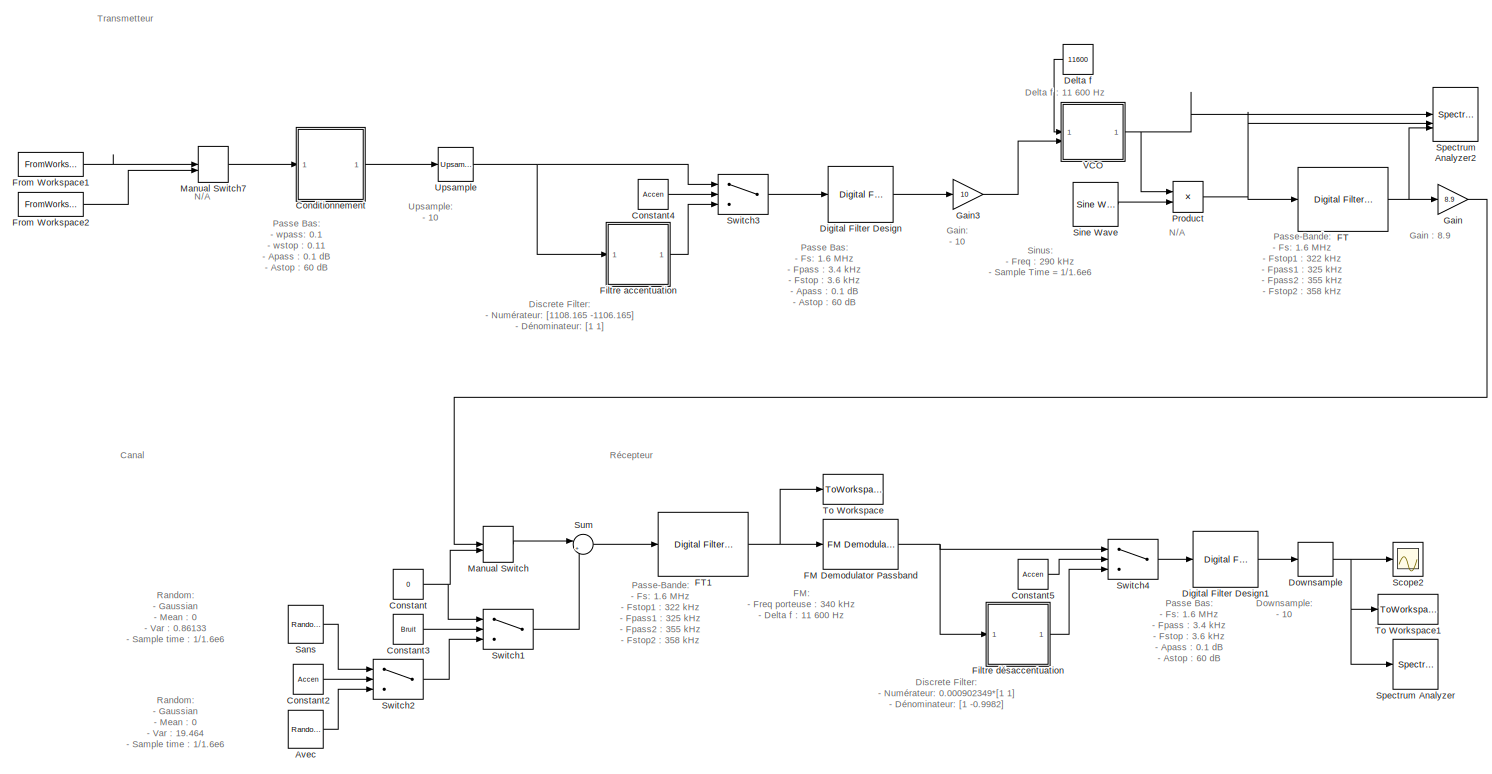
[diagram: root canvas - part 1/1, most of the canvas]
MODEL slx_f2a334653d4a
KIND model
CONFIG AbsTol = auto
CONFIG EnableMultiTasking = off
CONFIG FixedStep = auto
CONFIG MaxStep = auto
CONFIG MinStep = auto
CONFIG RelTol = 1e-3
CONFIG SampleTimeConstraint = Unconstrained
CONFIG SolverName = VariableStepAuto
CONFIG StartTime = 0.0
CONFIG StopTime = 7.5
BLOCK [Reference] Avec  REF=dspobslib/Random
Source
  SourceBlock = dspobslib/Random\nSource
  SourceType = Random Source Obsolete
  UserDataPersistent = on
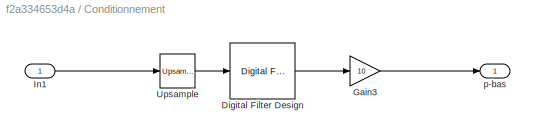
BLOCK [SubSystem] Conditionnement
BLOCK [Reference] Conditionnement/Digital Filter Design  REF=dspfdesign/Digital
Filter Design
  SourceBlock = dspfdesign/Digital\nFilter Design
  SourceType = Digital Filter Design
  UserDataPersistent = on
BLOCK [Gain] Conditionnement/Gain3
  Gain = 10
BLOCK [Inport] Conditionnement/In1
BLOCK [Reference] Conditionnement/Upsample  REF=dspsigops/Upsample
  SourceBlock = dspsigops/Upsample
  SourceType = Upsample
  UserDataPersistent = on
BLOCK [Outport] Conditionnement/p-bas
BLOCK [Constant] Constant
  Value = 0
BLOCK [Constant] Constant2
  Value = Accen
BLOCK [Constant] Constant3
  Value = Bruit
BLOCK [Constant] Constant4
  Value = Accen
BLOCK [Constant] Constant5
  Value = Accen
BLOCK [Constant] Delta f
  NameLocation = top
  Value = 11600
BLOCK [Reference] Digital Filter Design  REF=dspfdesign/Digital
Filter Design
  SourceBlock = dspfdesign/Digital\nFilter Design
  SourceType = Digital Filter Design
  UserDataPersistent = on
BLOCK [Reference] Digital Filter Design1  REF=dspfdesign/Digital
Filter Design
  SourceBlock = dspfdesign/Digital\nFilter Design
  SourceType = Digital Filter Design
  UserDataPersistent = on
BLOCK [DownSample] Downsample
  InputProcessing = Elements as channels (sample based)
  N = 10
  RateOptions = Allow multirate processing
BLOCK [Reference] FM Demodulator Passband  REF=commanapbnd3/FM
Demodulator
Passband
  SourceBlock = commanapbnd3/FM\nDemodulator\nPassband
  SourceType = FM Demodulator Passband
BLOCK [Reference] FT  REF=dspfdesign/Digital
Filter Design
  SourceBlock = dspfdesign/Digital\nFilter Design
  SourceType = Digital Filter Design
  UserDataPersistent = on
BLOCK [Reference] FT1  REF=dspfdesign/Digital
Filter Design
  SourceBlock = dspfdesign/Digital\nFilter Design
  SourceType = Digital Filter Design
  UserDataPersistent = on
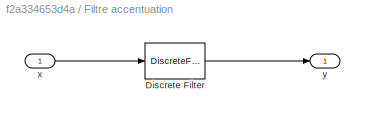
BLOCK [SubSystem] Filtre accentuation
BLOCK [DiscreteFilter] Filtre accentuation/Discrete Filter
  CloseFcn = dspblkCoreblockFVToolHelper(gcbh,'close');
  CopyFcn = dspblkCoreblockFVToolHelper(gcbh,'copy');
  DeleteFcn = dspblkCoreblockFVToolHelper(gcbh,'close');
  Denominator = [1 1]
  InputPortMap = u0
  LoadFcn = dspblkCoreblockFVToolHelper(gcbh,'load');
  ModelCloseFcn = dspblkCoreblockFVToolHelper(gcbh,'close');
  Numerator = [1108.165 -1106.165]
  PostSaveFcn = dspblkCoreblockFVToolHelper(gcbh,'postsave');
  PreSaveFcn = dspblkCoreblockFVToolHelper(gcbh,'presave');
BLOCK [Inport] Filtre accentuation/x
BLOCK [Outport] Filtre accentuation/y
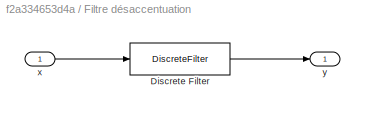
BLOCK [SubSystem] Filtre désaccentuation
BLOCK [DiscreteFilter] Filtre désaccentuation/Discrete Filter
  CloseFcn = dspblkCoreblockFVToolHelper(gcbh,'close');
  CopyFcn = dspblkCoreblockFVToolHelper(gcbh,'copy');
  DeleteFcn = dspblkCoreblockFVToolHelper(gcbh,'close');
  Denominator = [1 -0.9982]
  InputPortMap = u0
  LoadFcn = dspblkCoreblockFVToolHelper(gcbh,'load');
  ModelCloseFcn = dspblkCoreblockFVToolHelper(gcbh,'close');
  Numerator = 0.000902349*[1 1]
  PostSaveFcn = dspblkCoreblockFVToolHelper(gcbh,'postsave');
  PreSaveFcn = dspblkCoreblockFVToolHelper(gcbh,'presave');
BLOCK [Inport] Filtre désaccentuation/x
BLOCK [Outport] Filtre désaccentuation/y
BLOCK [FromWorkspace] From Workspace1
  Interpolate = off
  OutputAfterFinalValue = Setting to zero
  SampleTime = 1/16000
  VariableName = Sonm16
BLOCK [FromWorkspace] From Workspace2
  Interpolate = off
  OutputAfterFinalValue = Setting to zero
  SampleTime = 1/16000
  VariableName = Sonf16
BLOCK [Gain] Gain
  Gain = 8.9
BLOCK [Gain] Gain3
  Gain = 10
BLOCK [ManualSwitch] Manual Switch
BLOCK [ManualSwitch] Manual Switch7
BLOCK [Product] Product
BLOCK [Reference] Sans  REF=dspobslib/Random
Source
  SourceBlock = dspobslib/Random\nSource
  SourceType = Random Source Obsolete
  UserDataPersistent = on
BLOCK [Scope] Scope2
  ActiveDisplayYMaximum = 5.3144262558337489
  ActiveDisplayYMinimum = -41.036446146941891
  DataLoggingDecimateData = on
  DataLoggingDecimation = 1
  DataLoggingSaveFormat = Structure With Time
  DataLoggingVariableName = ScopeData2
  Floating = off
  GraphicalSettings = {"Style":{"BackgroundColor":[0.12941176470588237,0.12941176470588237,0.12941176470588237],"AxesColor":[0.07058823529411765,0.07058823529411765,0.07058823529411765],"LabelsColor":[0.8509803921568627,0.8509803921568627,0.8509803921568627],"PreserveColors":false,"Visible":[true],"LineStyle":["-"],"LineWidth":[1.5],"BarWidth":[0.9],"LineColor":["auto"],"LineFaceAlpha":[1],"LineEdgeAlpha":[1],"Marker":...<+1992ch>
  LayoutDimensionsString = [1 1]
  MultipleDisplayCache = [{"MaxYLimMag":10.150288562713799,"MaxYLimReal":5.3144262558337489,"MinYLimMag":0,"MinYLimReal":-41.036446146941891,"PlotAsMagnitudePhase":false,"ShowGrid":true,"ShowLegend":false,"Title":"%<SignalLabel>","YLabel":""}]
  NumInputPorts = 1
  ScopeFrameLocation = window
  WasSavedAsWebScope = on
  WindowPosition = [1.000000,1.000000,2056.000000,1257.000000,]
BLOCK [Reference] Sine Wave  REF=dspsrcs4/Sine Wave
  SourceBlock = dspsrcs4/Sine Wave
  SourceType = Sine Wave
BLOCK [SpectrumAnalyzer] Spectrum Analyzer
  Commented = on
  GraphicalSettings = {"GraphicalSettings":{"Style":{"BackgroundColor":[0.12941176470588237,0.12941176470588237,0.12941176470588237],"AxesColor":[0.070588235294117646,0.070588235294117646,0.070588235294117646],"LabelsColor":[0.85098039215686272,0.85098039215686272,0.85098039215686272],"PreserveColors":false,"Visible":true,"LineStyle":["-"],"LineWidth":1.5,"BarWidth":0.9,"LineColor":[1,0.90980392156862744,0.392156862745...<+101ch>
  ScopeFrameLocation = window
  SpectrumType = Power density
  SpectrumUnits = dBm/Hz
  WasSavedAsWebScope = on
  WindowInvariantSamplesPerUpdate = on
  WindowPosition = [1.000000,1.000000,2056.000000,1257.000000,]
  YLimits = [-147.624 -5.1467]
BLOCK [SpectrumAnalyzer] Spectrum Analyzer2
  AllowFFTLengthLessThanSamplesPerUpdate = on
  AveragingMethod = Running
  AxesScaling = Manual
  Commented = on
  DefaultConfigurationName = spbscopes.SpectrumAnalyzerBlockCfg
  FFTLength = 128
  FrequencyInputRBWFromPort = 0
  FrequencyInputRBWPort = 0
  FrequencyVectorFromPort = 0
  FrequencyVectorPort = 0
  GraphicalSettings = {"GraphicalSettings":{"SpectralMask":{"CustomReferenceLevel":"0","EnabledMasks":"None","LowerMask":"-Inf","MaskFrequencyOffset":"0","ReferenceLevel":"Custom","SelectedChannel":"1","UpperMask":"Inf"},"Style":{"BackgroundColor":[0.15294117647058825,0.15294117647058825,0.15294117647058825],"AxesColor":[0,0,0],"LabelsColor":[0.68627450980392157,0.68627450980392157,0.68627450980392157],"PreserveColors"...<+858ch>
  IsFrequencyInputMode = 0
  MeasurementChannel = 2
  Method = Welch
  NameLocation = top
  NumInputPorts = 3
  OverlapPercent = 80
  SampleRate = 1600000
  ScopeFrameLocation = window
  ScopeSpecificationString = spbscopes.SpectrumAnalyzerBlockCfg('CurrentConfiguration', extmgr.ConfigurationSet(extmgr.Configuration('Core','General UI',true,'FigureColor',[0.156862745098039 0.156862745098039 0.156862745098039]),extmgr.Configuration('Core','Source UI',true),extmgr.Configuration('Sources','WiredSimulink',true),extmgr.Configuration('Visuals','Spectrum',true,'AxesProperties',struct('Color',{[0 0 0],[0 0 0]},'XCo...<+2161ch>
  SelectedToolstripTab = spectrumAnalyzerToolstrip.measurementsTab
  ShowLegend = on
  Span = 1000000
  SpectralAverages = 10
  SpectrumType = Power density
  SpectrumUnits = dBm/Hz
  StartFrequency = -500000
  StopFrequency = 500000
  WasSavedAsWebScope = on
  WindowPosition = [1.000000,1.000000,2056.000000,1257.000000,]
  YLimits = [-221.85 11.4946]
BLOCK [Sum] Sum
  Inputs = |++
BLOCK [Switch] Switch1
  Criteria = u2 > Threshold
  InputSameDT = off
  SaturateOnIntegerOverflow = off
BLOCK [Switch] Switch2
  Criteria = u2 > Threshold
  InputSameDT = off
  SaturateOnIntegerOverflow = off
BLOCK [Switch] Switch3
  Criteria = u2 > Threshold
  InputSameDT = off
  NameLocation = right
  SaturateOnIntegerOverflow = off
BLOCK [Switch] Switch4
  Criteria = u2 > Threshold
  InputSameDT = off
  SaturateOnIntegerOverflow = off
BLOCK [ToWorkspace] To Workspace
  FixptAsFi = on
  MaxDataPoints = inf
  SampleTime = -1
  Save2DSignal = 2-D array (concatenate along first dimension)
  VariableName = RSBi
BLOCK [ToWorkspace] To Workspace1
  FixptAsFi = on
  MaxDataPoints = inf
  SampleTime = -1
  Save2DSignal = 2-D array (concatenate along first dimension)
  VariableName = RSBo
BLOCK [Reference] Upsample  REF=dspsigops/Upsample
  SourceBlock = dspsigops/Upsample
  SourceType = Upsample
  UserDataPersistent = on
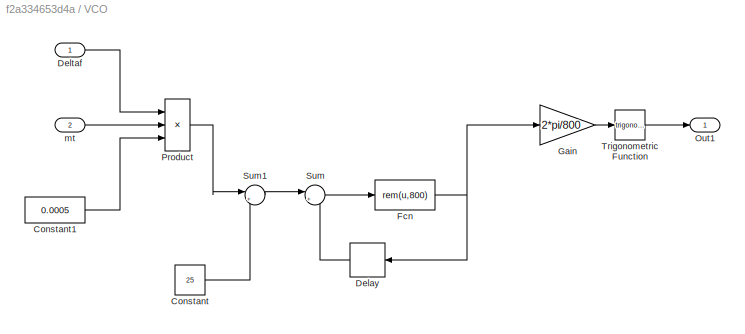
BLOCK [SubSystem] VCO
BLOCK [Constant] VCO/Constant
  Value = 25
BLOCK [Constant] VCO/Constant1
  Value = 0.0005
BLOCK [Delay] VCO/Delay
  DelayLength = 1
  InitialCondition = 0
  InputPortMap = u0
  NameLocation = top
BLOCK [Inport] VCO/Deltaf 
BLOCK [Fcn] VCO/Fcn
  Expr = rem(u,800)
BLOCK [Gain] VCO/Gain
  Gain = 2*pi/800
BLOCK [Outport] VCO/Out1
BLOCK [Product] VCO/Product
  Inputs = 3
BLOCK [Sum] VCO/Sum
  Inputs = |++
BLOCK [Sum] VCO/Sum1
  Inputs = |++
BLOCK [Trigonometry] VCO/Trigonometric Function
BLOCK [Inport] VCO/mt
  Port = 2
ANNOTATION (root): Canal
ANNOTATION (root): Delta f : 11 600 Hz
ANNOTATION (root): Discrete Filter: - Numérateur: 0.000902349*[1 1] - Dénominateur: [1 -0.9982]
ANNOTATION (root): Discrete Filter: - Numérateur: [1108.165 -1106.165] - Dénominateur: [1 1]
ANNOTATION (root): Downsample: - 10
ANNOTATION (root): FM: - Freq porteuse : 340 kHz - Delta f : 11 600 Hz
ANNOTATION (root): Gain : 8.9
ANNOTATION (root): Gain: - 10
ANNOTATION (root): N/A
ANNOTATION (root): Passe Bas: - Fs: 1.6 MHz - Fpass : 3.4 kHz - Fstop : 3.6 kHz - Apass : 0.1 dB - Astop : 60 dB
ANNOTATION (root): Passe Bas: - wpass: 0.1 - wstop : 0.11 - Apass : 0.1 dB - Astop : 60 dB Upsample: - 10 Gain: - 10
ANNOTATION (root): Passe-Bande: - Fs: 1.6 MHz - Fstop1 : 322 kHz - Fpass1 : 325 kHz - Fpass2 : 355 kHz - Fstop2 : 358 kHz - Astop1 : 80 dB - Apass : 0.1 dB - Astop2 : 80 dB
ANNOTATION (root): Random: - Gaussian - Mean : 0 - Var : 0.86133 - Sample time : 1/1.6e6
ANNOTATION (root): Random: - Gaussian - Mean : 0 - Var : 19.464 - Sample time : 1/1.6e6
ANNOTATION (root): Récepteur
ANNOTATION (root): Sinus: - Freq : 290 kHz - Sample Time = 1/1.6e6
ANNOTATION (root): Transmetteur
ANNOTATION (root): Upsample: - 10
LINE Avec:1 -> Switch2:3
LINE Conditionnement/Digital Filter Design:1 -> Conditionnement/Gain3:1
LINE Conditionnement/Gain3:1 -> Conditionnement/p-bas:1
LINE Conditionnement/In1:1 -> Conditionnement/Upsample:1
LINE Conditionnement/Upsample:1 -> Conditionnement/Digital Filter Design:1
LINE Conditionnement:1 -> Upsample:1
LINE Constant2:1 -> Switch2:2
LINE Constant3:1 -> Switch1:2
LINE Constant4:1 -> Switch3:2
LINE Constant5:1 -> Switch4:2
NET Constant:1 -> Manual Switch:2, Switch1:1
LINE Delta f:1 -> VCO:1
LINE Digital Filter Design1:1 -> Downsample:1
LINE Digital Filter Design:1 -> Gain3:1
NET Downsample:1 -> Scope2:1, Spectrum Analyzer:1, To Workspace1:1
NET FM Demodulator Passband:1 -> Filtre désaccentuation:1, Switch4:1
NET FT1:1 -> FM Demodulator Passband:1, To Workspace:1
NET FT:1 -> Gain:1, Spectrum Analyzer2:3
LINE Filtre accentuation/Discrete Filter:1 -> Filtre accentuation/y:1
LINE Filtre accentuation/x:1 -> Filtre accentuation/Discrete Filter:1
LINE Filtre accentuation:1 -> Switch3:3
LINE Filtre désaccentuation/Discrete Filter:1 -> Filtre désaccentuation/y:1
LINE Filtre désaccentuation/x:1 -> Filtre désaccentuation/Discrete Filter:1
LINE Filtre désaccentuation:1 -> Switch4:3
LINE From Workspace1:1 -> Manual Switch7:1
LINE From Workspace2:1 -> Manual Switch7:2
LINE Gain3:1 -> VCO:2
LINE Gain:1 -> Manual Switch:1
LINE Manual Switch7:1 -> Conditionnement:1
LINE Manual Switch:1 -> Sum:1
NET Product:1 -> FT:1, Spectrum Analyzer2:2
LINE Sans:1 -> Switch2:1
LINE Sine Wave:1 -> Product:2
LINE Sum:1 -> FT1:1
LINE Switch1:1 -> Sum:2
LINE Switch2:1 -> Switch1:3
LINE Switch3:1 -> Digital Filter Design:1
LINE Switch4:1 -> Digital Filter Design1:1
NET Upsample:1 -> Filtre accentuation:1, Switch3:1
LINE VCO/Constant1:1 -> VCO/Product:3
LINE VCO/Constant:1 -> VCO/Sum1:2
LINE VCO/Delay:1 -> VCO/Sum:2
LINE VCO/Deltaf :1 -> VCO/Product:1
NET VCO/Fcn:1 -> VCO/Delay:1, VCO/Gain:1
LINE VCO/Gain:1 -> VCO/Trigonometric Function:1
LINE VCO/Product:1 -> VCO/Sum1:1
LINE VCO/Sum1:1 -> VCO/Sum:1
LINE VCO/Sum:1 -> VCO/Fcn:1
LINE VCO/Trigonometric Function:1 -> VCO/Out1:1
LINE VCO/mt:1 -> VCO/Product:2
NET VCO:1 -> Product:1, Spectrum Analyzer2:1
note: NET lines group one-source signal fan-out (src -> all destinations, sorted); 1:1 wires keep LINE
